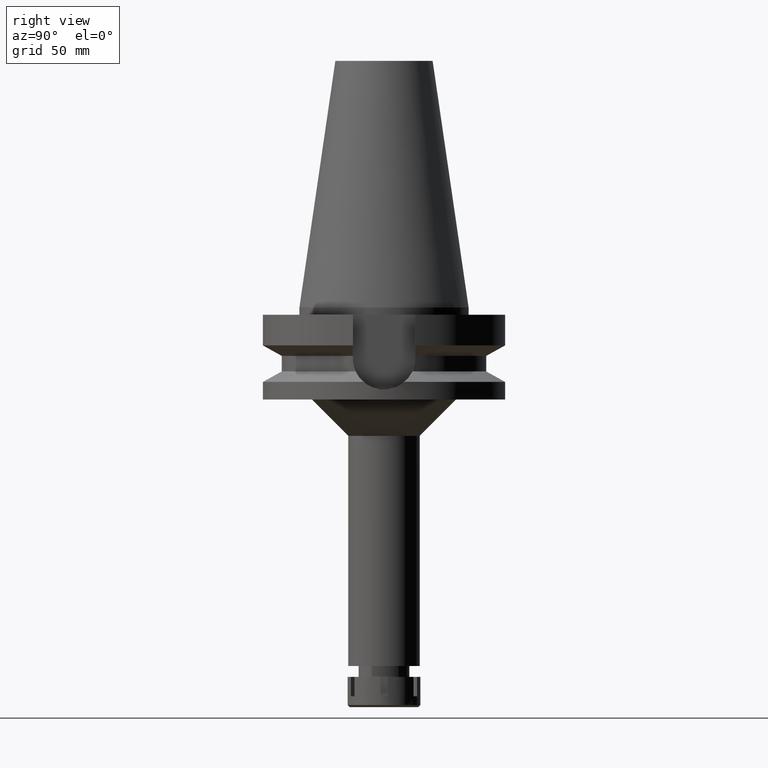
[diagram: clean part render]
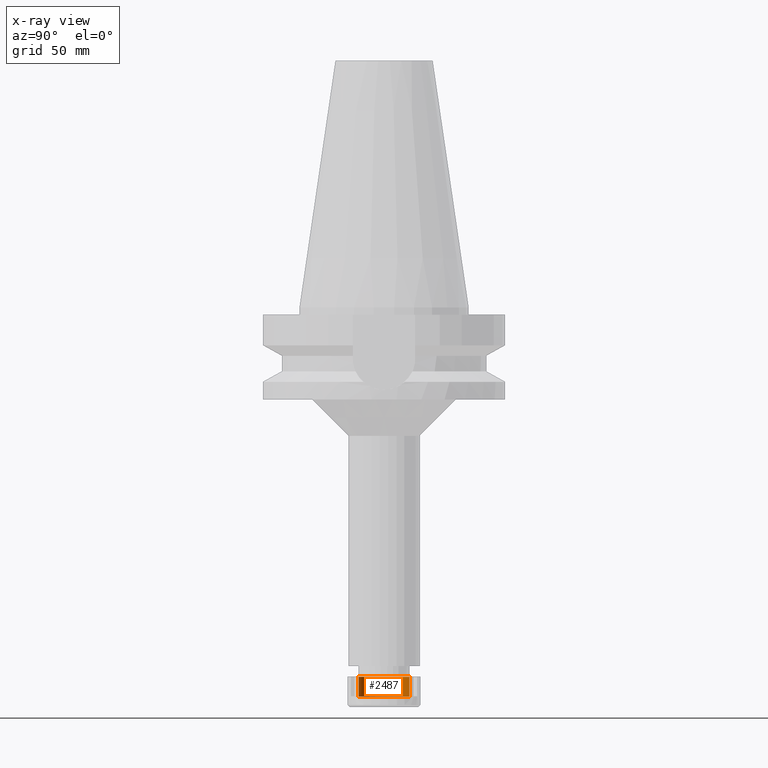
[diagram: x-ray — body ghosted, one internal face saturated and labeled with its STEP entity id]
A machine part, right view, then the same camera in x-ray: the body is ghosted and one INTERNAL B-rep face — a face not visible from any outside direction — is saturated and labeled: STEP entity #2487.
In plain terms, the highlighted cylindrical surface (edge-blend (fillet) strip) has radius 10.5 mm, axis along (0, 0, -1).
Its self-contained STEP definition (entity closure, byte-faithful):
#66 = CARTESIAN_POINT ( 'NONE',  ( 0.0000000000000000000, -10.50000000000000000, 0.0000000000000000000 ) ) ;
#99 = VECTOR ( 'NONE', #2209, 1000.000000000000000 ) ;
#267 = LINE ( 'NONE', #3346, #99 ) ;
#505 = AXIS2_PLACEMENT_3D ( 'NONE', #1692, #1193, #3694 ) ;
#559 = ORIENTED_EDGE ( 'NONE', *, *, #2635, .F. ) ;
#594 = DIRECTION ( 'NONE',  ( 0.0000000000000000000, 0.0000000000000000000, -1.000000000000000000 ) ) ;
#612 = DIRECTION ( 'NONE',  ( 0.0000000000000000000, -1.000000000000000000, 0.0000000000000000000 ) ) ;
#811 = CIRCLE ( 'NONE', #505, 10.50000000000000000 ) ;
#892 = CARTESIAN_POINT ( 'NONE',  ( 0.0000000000000000000, 0.0000000000000000000, 0.0000000000000000000 ) ) ;
#1058 = AXIS2_PLACEMENT_3D ( 'NONE', #3106, #3663, #3156 ) ;
#1193 = DIRECTION ( 'NONE',  ( 0.0000000000000000000, 0.0000000000000000000, -1.000000000000000000 ) ) ;
#1202 = FACE_OUTER_BOUND ( 'NONE', #2793, .T. ) ;
#1336 = CARTESIAN_POINT ( 'NONE',  ( 0.0000000000000000000, -10.50000000000000000, -8.200000000000001066 ) ) ;
#1569 = LINE ( 'NONE', #3040, #2056 ) ;
#1692 = CARTESIAN_POINT ( 'NONE',  ( 0.0000000000000000000, 0.0000000000000000000, -8.200000000000001066 ) ) ;
#1778 = ORIENTED_EDGE ( 'NONE', *, *, #1905, .T. ) ;
#1790 = CARTESIAN_POINT ( 'NONE',  ( 0.0000000000000000000, 10.50000000000000000, -8.200000000000001066 ) ) ;
#1847 = VERTEX_POINT ( 'NONE', #1336 ) ;
#1905 = EDGE_CURVE ( 'NONE', #3248, #3109, #267, .T. ) ;
#2056 = VECTOR ( 'NONE', #3317, 1000.000000000000000 ) ;
#2124 = EDGE_CURVE ( 'NONE', #1847, #3248, #811, .T. ) ;
#2209 = DIRECTION ( 'NONE',  ( 0.0000000000000000000, 0.0000000000000000000, 1.000000000000000000 ) ) ;
#2246 = ORIENTED_EDGE ( 'NONE', *, *, #3549, .T. ) ;
#2407 = ORIENTED_EDGE ( 'NONE', *, *, #2124, .T. ) ;
#2427 = CIRCLE ( 'NONE', #1058, 10.50000000000000000 ) ;
#2487 = ADVANCED_FACE ( 'NONE', ( #1202 ), #2628, .F. ) ;
#2628 = CYLINDRICAL_SURFACE ( 'NONE', #3264, 10.50000000000000000 ) ;
#2635 = EDGE_CURVE ( 'NONE', #1847, #3293, #1569, .T. ) ;
#2793 = EDGE_LOOP ( 'NONE', ( #2246, #559, #2407, #1778 ) ) ;
#3040 = CARTESIAN_POINT ( 'NONE',  ( 0.0000000000000000000, -10.50000000000000000, -8.200000000000001066 ) ) ;
#3106 = CARTESIAN_POINT ( 'NONE',  ( 0.0000000000000000000, 0.0000000000000000000, 0.0000000000000000000 ) ) ;
#3109 = VERTEX_POINT ( 'NONE', #3292 ) ;
#3156 = DIRECTION ( 'NONE',  ( 0.0000000000000000000, 1.000000000000000000, 0.0000000000000000000 ) ) ;
#3248 = VERTEX_POINT ( 'NONE', #1790 ) ;
#3264 = AXIS2_PLACEMENT_3D ( 'NONE', #892, #594, #612 ) ;
#3292 = CARTESIAN_POINT ( 'NONE',  ( 0.0000000000000000000, 10.50000000000000000, 0.0000000000000000000 ) ) ;
#3293 = VERTEX_POINT ( 'NONE', #66 ) ;
#3317 = DIRECTION ( 'NONE',  ( 0.0000000000000000000, 0.0000000000000000000, 1.000000000000000000 ) ) ;
#3346 = CARTESIAN_POINT ( 'NONE',  ( 0.0000000000000000000, 10.50000000000000000, -8.200000000000001066 ) ) ;
#3549 = EDGE_CURVE ( 'NONE', #3109, #3293, #2427, .T. ) ;
#3663 = DIRECTION ( 'NONE',  ( 0.0000000000000000000, 0.0000000000000000000, 1.000000000000000000 ) ) ;
#3694 = DIRECTION ( 'NONE',  ( 0.0000000000000000000, -1.000000000000000000, 0.0000000000000000000 ) ) ;